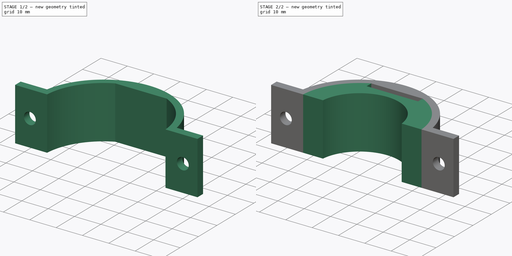
[diagram: build sequence overview — one tinted view per stage of 2, left to right]
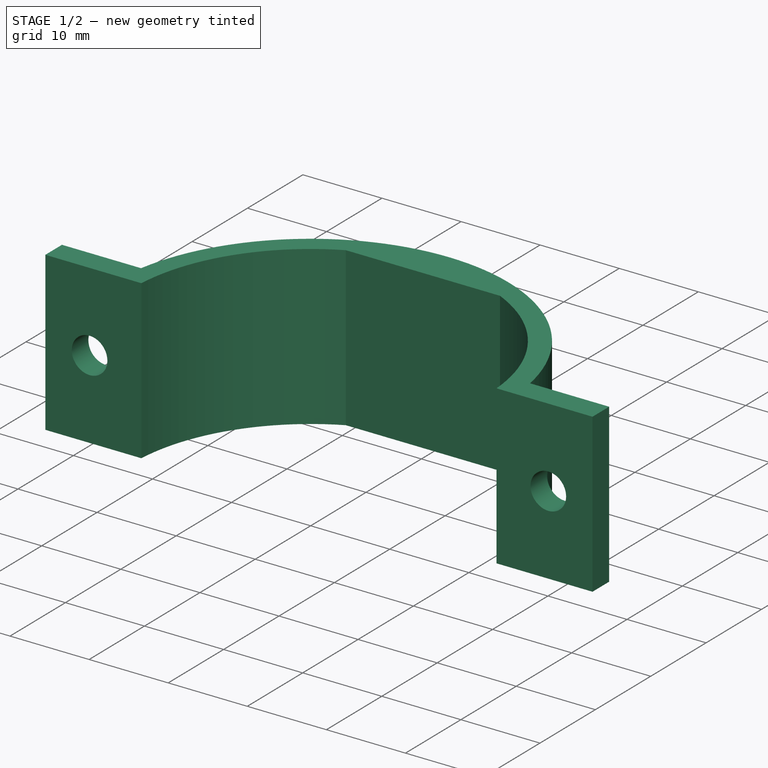
[diagram: stage 1 of 2 — iso view after this stage's code; geometry added in this stage tinted green]
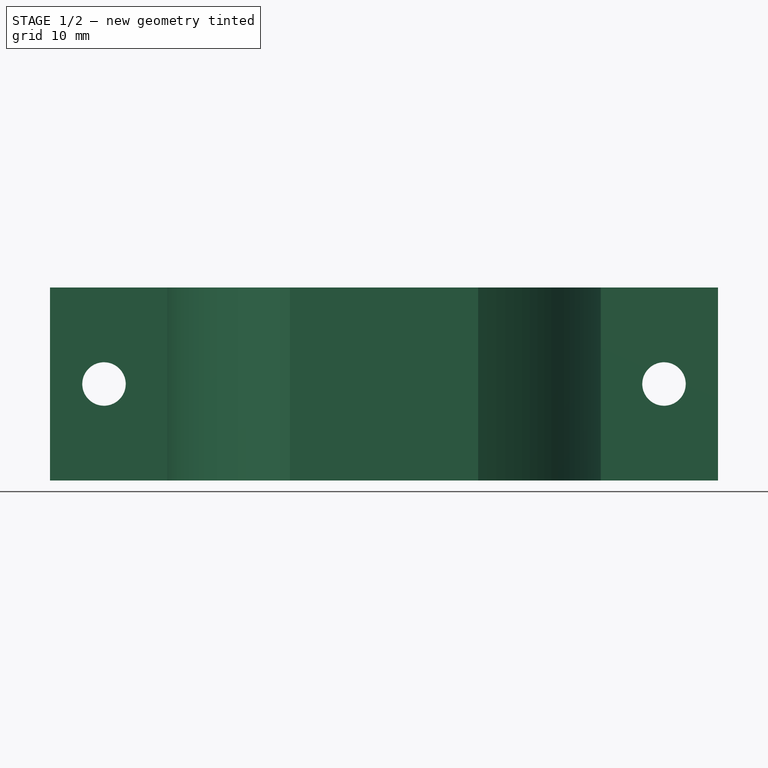
[diagram: stage 1 of 2 — front view after this stage's code; geometry added in this stage tinted green]
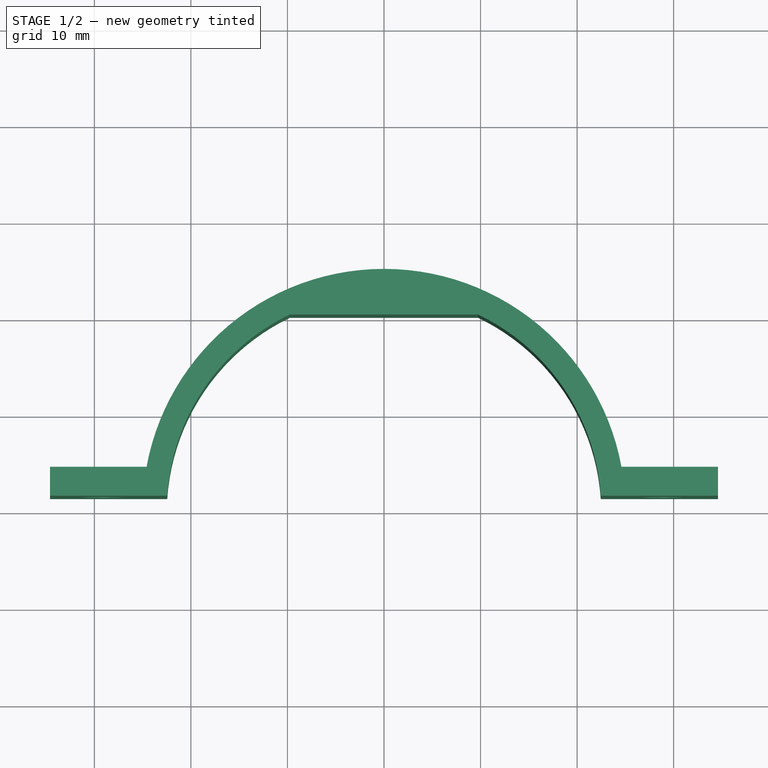
[diagram: stage 1 of 2 — top view after this stage's code; geometry added in this stage tinted green]
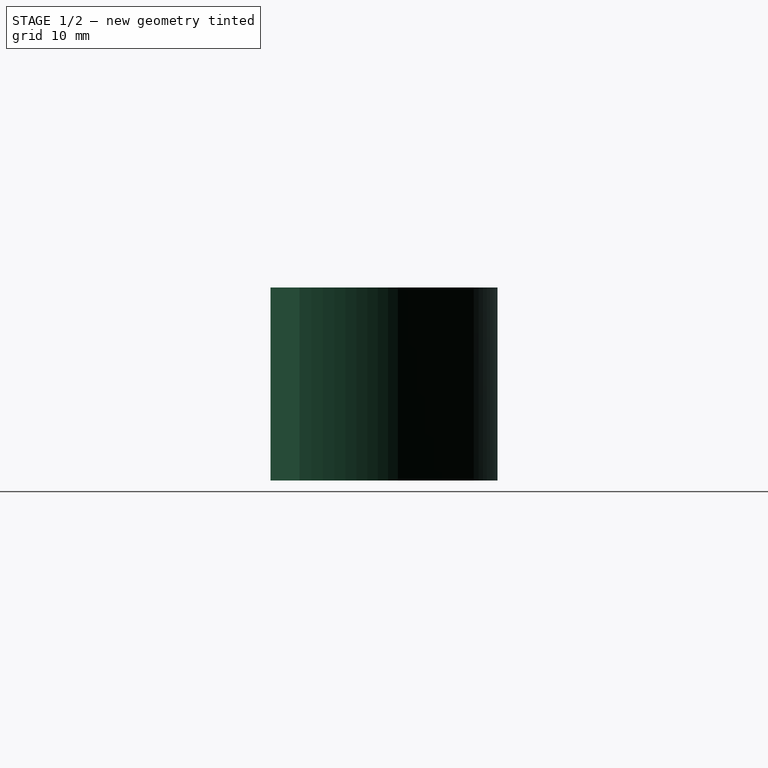
[diagram: stage 1 of 2 — right view after this stage's code; geometry added in this stage tinted green]
FCSTD DOCUMENT  (FreeCAD 0.22R38127 (Git))
Label: collar3
License: All rights reserved
LicenseURL: http://en.wikipedia.org/wiki/All_rights_reserved
objects: Sketcher::SketchObject×3, PartDesign::Pad×2, PartDesign::Body×2, PartDesign::Pocket×1
note: 11 computed .brp shape members not serialized (recipe doc carries the construction recipe); baked Part::Feature solids carry a one-line shape summary decoded from their .brp

FEATURE [PartDesign::Body] Body
  AllowCompound = false
  Group = -> [Sketch,Pad]
  Origin = -> Origin
  Tip = -> Pad
FEATURE [Sketcher::SketchObject] Sketch001
  AttachmentSupport = -> [XY_Plane001]
  FullyConstrained = true
  MapMode = 5
  sketch-geometry (10):
    g0: ArcOfCircle CenterX=5e-16 CenterY=0 CenterZ=0 NormalX=0 NormalY=0 NormalZ=1 AngleXU=0 Radius=25 StartAngle=0.180986 EndAngle=2.96061
    g1: LineSegment StartX=24.5917 StartY=4.5 StartZ=0 EndX=34.5917 EndY=4.5 EndZ=0
    g2: LineSegment StartX=34.5917 StartY=4.5 StartZ=0 EndX=34.5917 EndY=1.5 EndZ=0
    g3: LineSegment StartX=34.5917 StartY=1.5 StartZ=0 EndX=22.4499 EndY=1.5 EndZ=0
    g4: LineSegment StartX=-24.5917 StartY=4.5 StartZ=0 EndX=-34.5917 EndY=4.5 EndZ=0
    g5: LineSegment StartX=-34.5917 StartY=4.5 StartZ=0 EndX=-34.5917 EndY=1.5 EndZ=0
    g6: ArcOfCircle CenterX=5e-16 CenterY=0 CenterZ=0 NormalX=0 NormalY=0 NormalZ=1 AngleXU=0 Radius=22.5 StartAngle=2.01898 EndAngle=3.07488
    g7: ArcOfCircle CenterX=5e-16 CenterY=0 CenterZ=0 NormalX=0 NormalY=0 NormalZ=1 AngleXU=0 Radius=22.5 StartAngle=0.0667161 EndAngle=1.12261
    g8: LineSegment StartX=-9.75 StartY=20.2778 StartZ=0 EndX=9.75 EndY=20.2778 EndZ=0
    g9: LineSegment StartX=-34.5917 StartY=1.5 StartZ=0 EndX=-22.4499 EndY=1.5 EndZ=0
  constraints (28):
    c: Coincident(g0,g1)
    c: Coincident(g1,g2)
    c: Coincident(g2,g3)
    c: Coincident(g0,g4)
    c: Coincident(g4,g5)
    c: Vertical(g5)
    c: Horizontal(g4)
    c: Symmetric(g1,g4,g-2)
    c: Horizontal(g3,g6)
    c: Symmetric(g2,g5,g-2)
    c: DistanceY(g-1,g5) = 1.5
    c: DistanceX(g4,g4) = 10
    c: Diameter(g0) = 50
    c: Coincident(g6,g0)
    c: Coincident(g7,g0)
    c: Coincident(g7,g3)
    c: Coincident(g8,g6)
    c: Coincident(g8,g7)
    c: Horizontal(g8)
    c: Equal(g6,g7)
    c: Diameter(g6) = 45
    c: Symmetric(g0,g0,g-2)
    c: DistanceX(g8,g8) = 19.5
    c: Coincident(g9,g5)
    c: Coincident(g9,g6)
    c: Horizontal(g9)
    c: DistanceY(g5,g5) = 3
    c: Coincident(g0,g-1)
FEATURE [PartDesign::Pad] Pad001
  Direction = (0,0,1)
  Length = 20
  Length2 = 10
  Profile = -> Sketch001
  ReferenceAxis = -> Sketch001 [N_Axis]
  Refine = true
  Suppressed = false
  Type = 0
FEATURE [Sketcher::SketchObject] Sketch002
  AttachmentSupport = -> [XZ_Plane001]
  FullyConstrained = true
  MapMode = 5
  Placement = pos=(0,0,0) rot=(1,0,0;1.5708rad)
  sketch-geometry (2):
    g0: Circle CenterX=-29 CenterY=10 CenterZ=0 NormalX=0 NormalY=0 NormalZ=1 AngleXU=0 Radius=2.25
    g1: Circle CenterX=29 CenterY=10 CenterZ=0 NormalX=0 NormalY=0 NormalZ=1 AngleXU=0 Radius=2.25
  constraints (5):
    c: Symmetric(g0,g1,g-2)
    c: Equal(g0,g1)
    c: Diameter(g0) = 4.5
    c: DistanceY(g-1,g0) = 10
    c: DistanceX(g0,g-1) = 29
FEATURE [PartDesign::Pocket] Pocket
  BaseFeature = -> Pad001
  Direction = (0,1,-2e-16)
  Length = 5
  Length2 = 5
  Profile = -> Sketch002
  ReferenceAxis = -> Sketch002 [N_Axis]
  Refine = true
  Suppressed = false
  Type = 1
FEATURE [PartDesign::Body] Body001
  AllowCompound = false
  Group = -> [Sketch001,Pad001,Sketch002,Pocket]
  Origin = -> Origin001
  Tip = -> Pocket
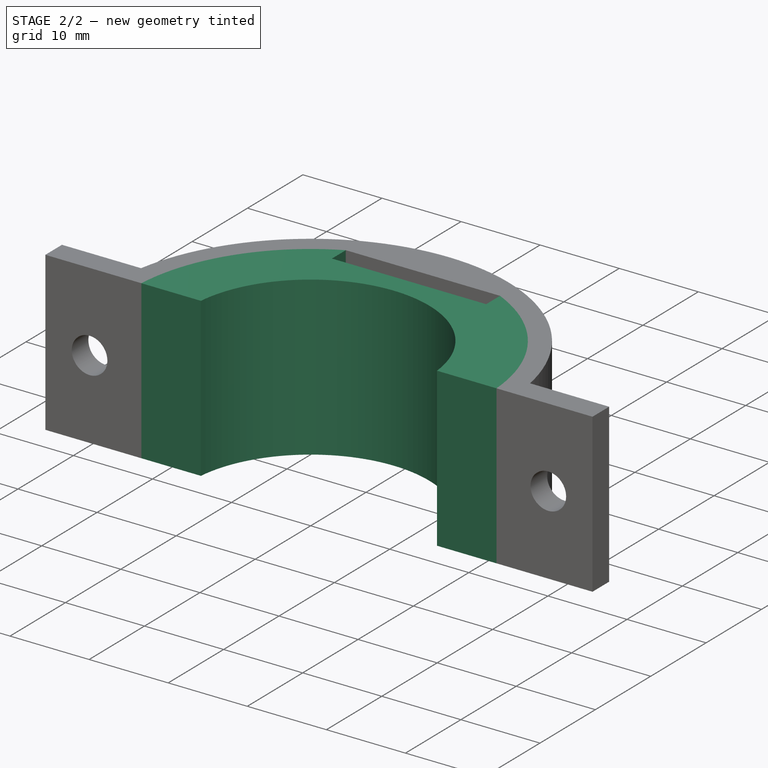
[diagram: stage 2 of 2 — iso view after this stage's code; geometry added in this stage tinted green]
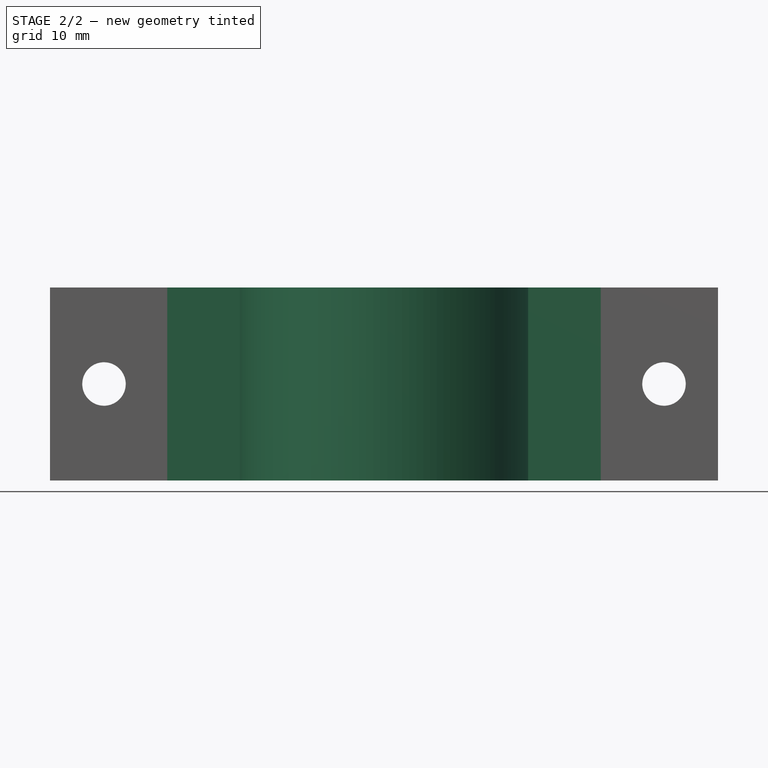
[diagram: stage 2 of 2 — front view after this stage's code; geometry added in this stage tinted green]
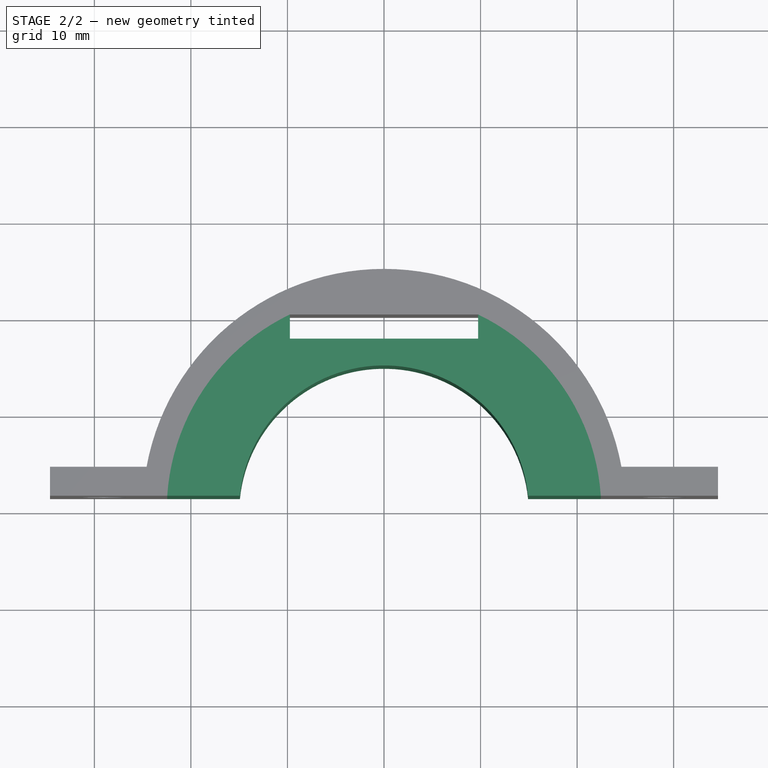
[diagram: stage 2 of 2 — top view after this stage's code; geometry added in this stage tinted green]
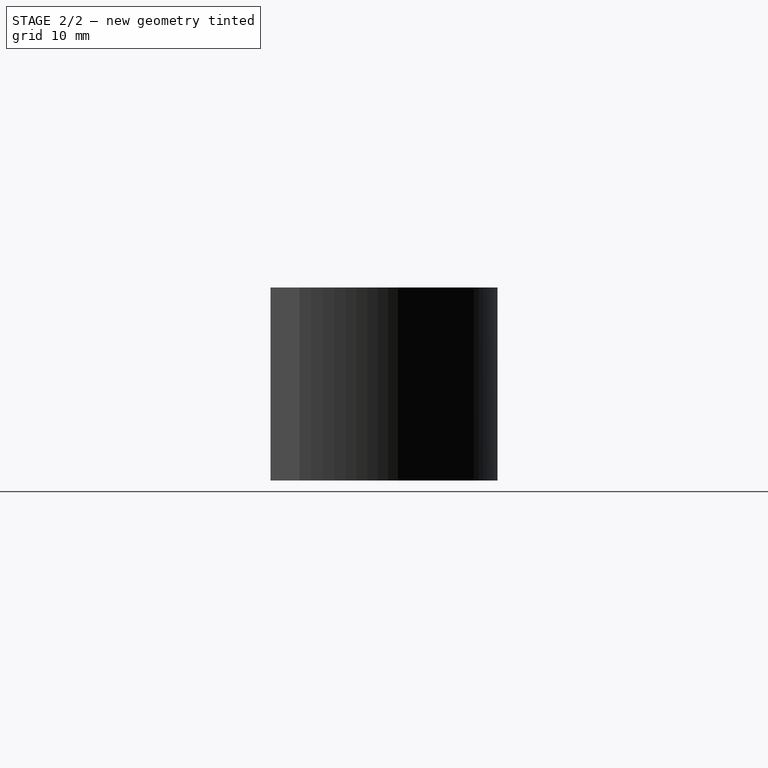
[diagram: stage 2 of 2 — right view after this stage's code; geometry added in this stage tinted green]
FEATURE [Sketcher::SketchObject] Sketch
  AttachmentSupport = -> [XY_Plane]
  FullyConstrained = true
  MapMode = 5
  sketch-geometry (8):
    g0: ArcOfCircle CenterX=0 CenterY=0 CenterZ=0 NormalX=0 NormalY=0 NormalZ=1 AngleXU=0 Radius=22.5 StartAngle=2.01898 EndAngle=3.07488
    g1: ArcOfCircle CenterX=0 CenterY=0 CenterZ=0 NormalX=0 NormalY=0 NormalZ=1 AngleXU=0 Radius=22.5 StartAngle=0.0667161 EndAngle=1.12261
    g2: LineSegment StartX=-9.75 StartY=20.2778 StartZ=0 EndX=-9.75 EndY=17.7778 EndZ=0
    g3: LineSegment StartX=-9.75 StartY=17.7778 StartZ=0 EndX=9.75 EndY=17.7778 EndZ=0
    g4: LineSegment StartX=9.75 StartY=17.7778 StartZ=0 EndX=9.75 EndY=20.2778 EndZ=0
    g5: ArcOfCircle CenterX=0 CenterY=0 CenterZ=0 NormalX=0 NormalY=0 NormalZ=1 AngleXU=0 Radius=15 StartAngle=0.100167 EndAngle=3.04143
    g6: LineSegment StartX=-22.4499 StartY=1.5 StartZ=0 EndX=-14.9248 EndY=1.5 EndZ=0
    g7: LineSegment StartX=14.9248 StartY=1.5 StartZ=0 EndX=22.4499 EndY=1.5 EndZ=0
  constraints (22):
    c: Horizontal(g1,g0)
    c: DistanceY(g2,g2) = 2.5
    c: Coincident(g5,g0)
    c: Diameter(g5) = 30
    c: Coincident(g1,g4)
    c: Coincident(g2,g0)
    c: Coincident(g2,g3)
    c: Coincident(g3,g4)
    c: Coincident(g0,g-1)
    c: Coincident(g1,g0)
    c: Symmetric(g2,g3,g-2)
    c: Vertical(g2)
    c: Symmetric(g0,g1,g-2)
    c: DistanceX(g3,g3) = 19.5
    c: Diameter(g0) = 45
    c: Coincident(g6,g0)
    c: Horizontal(g6)
    c: Coincident(g7,g5)
    c: Coincident(g7,g1)
    c: Horizontal(g7)
    c: Coincident(g5,g6)
    c: DistanceY(g-1,g0) = 1.5
FEATURE [PartDesign::Pad] Pad
  Direction = (0,0,1)
  Length = 20
  Length2 = 10
  Profile = -> Sketch
  ReferenceAxis = -> Sketch [N_Axis]
  Suppressed = false
  Type = 0
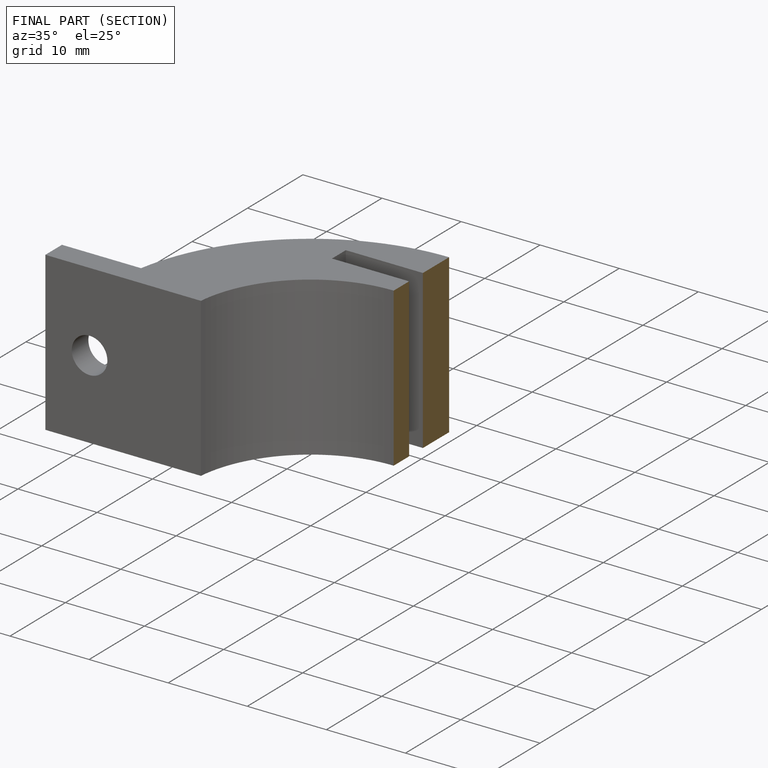
[diagram: finished part — half-section view (interior)]
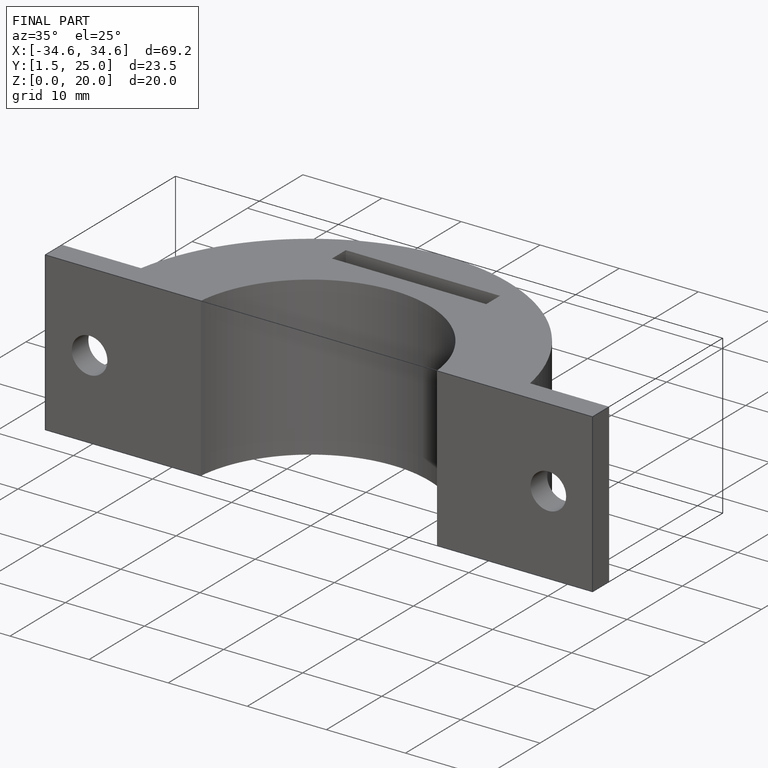
[diagram: finished part — iso view with bounding-box wireframe]
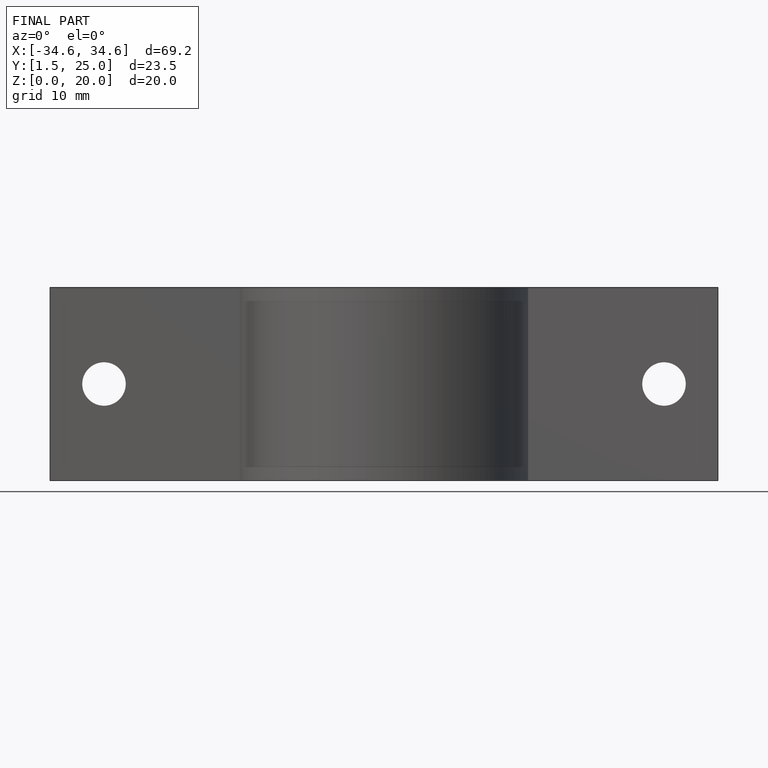
[diagram: finished part — front view with bounding-box wireframe]
